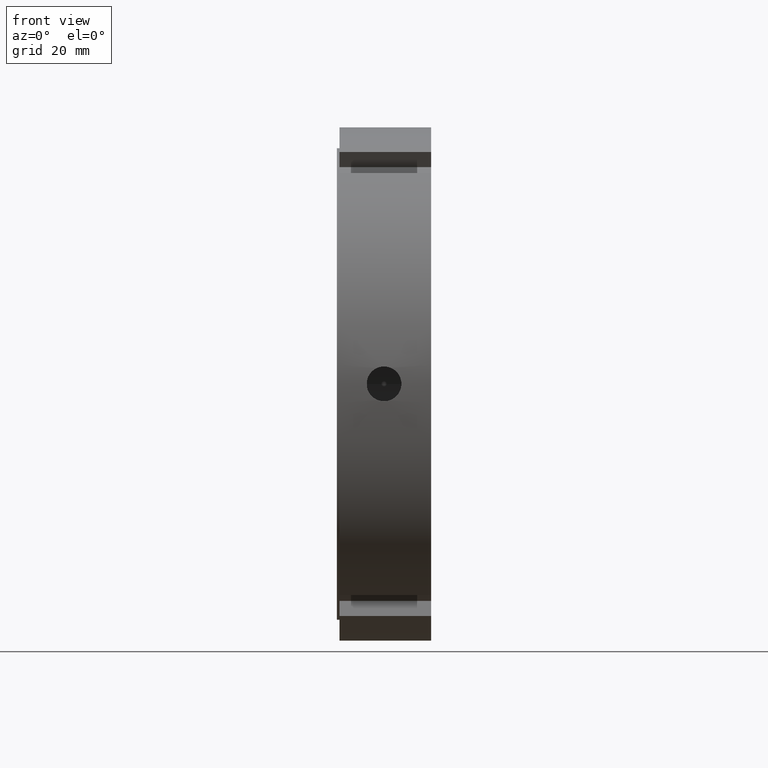
[diagram: clean part render]
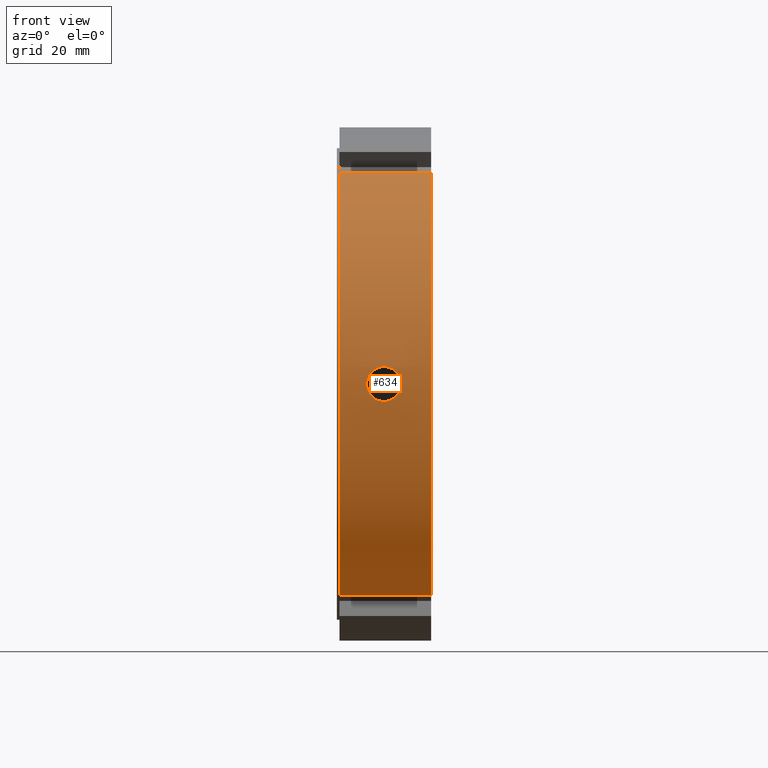
[diagram: same view with one face highlighted and labeled with its STEP entity id]
A machine part, front view. The second image highlights one B-rep face of the part: STEP entity #634.
In plain terms, the highlighted cylindrical surface (partial cylindrical patch) has radius 49 mm, axis along (1, 0, 0).
Its self-contained STEP definition (entity closure, byte-faithful):
#75=CARTESIAN_POINT('',(0.499999999999989,-27.882332509287338,-40.293616539615051));
#76=VERTEX_POINT('',#75);
#91=CARTESIAN_POINT('',(17.999999999999989,-27.882332509287338,-40.293616539615051));
#92=VERTEX_POINT('',#91);
#99=CARTESIAN_POINT('',(0.499999999999989,-27.882332509287338,-40.293616539615051));
#100=DIRECTION('',(1.0,0.0,0.0));
#101=VECTOR('',#100,17.500000000000000);
#102=LINE('',#99,#101);
#103=EDGE_CURVE('',#76,#92,#102,.T.);
#303=CARTESIAN_POINT('',(0.499999999999989,-27.882332509287306,40.293616539615059));
#304=VERTEX_POINT('',#303);
#313=CARTESIAN_POINT('',(17.999999999999989,-27.882332509287306,40.293616539615059));
#314=VERTEX_POINT('',#313);
#315=CARTESIAN_POINT('',(17.999999999999989,-27.882332509287309,40.293616539615059));
#316=DIRECTION('',(-1.0,0.0,0.0));
#317=VECTOR('',#316,17.500000000000000);
#318=LINE('',#315,#317);
#319=EDGE_CURVE('',#314,#304,#318,.T.);
#499=CARTESIAN_POINT('',(17.999999999999989,0.0,0.0));
#500=DIRECTION('',(1.0,0.0,0.0));
#501=DIRECTION('',(0.0,1.0,0.0));
#502=AXIS2_PLACEMENT_3D('',#499,#500,#501);
#503=CIRCLE('',#502,49.0);
#504=EDGE_CURVE('',#314,#92,#503,.T.);
#576=CARTESIAN_POINT('',(9.249999999999989,0.0,0.0));
#577=DIRECTION('',(1.0,0.0,0.0));
#578=DIRECTION('',(0.0,1.0,0.0));
#579=AXIS2_PLACEMENT_3D('',#576,#577,#578);
#580=CYLINDRICAL_SURFACE('',#579,49.0);
#581=ORIENTED_EDGE('',*,*,#103,.T.);
#582=ORIENTED_EDGE('',*,*,#504,.F.);
#583=ORIENTED_EDGE('',*,*,#319,.T.);
#584=CARTESIAN_POINT('',(0.499999999999989,0.0,0.0));
#585=DIRECTION('',(1.0,0.0,0.0));
#586=DIRECTION('',(0.0,1.0,0.0));
#587=AXIS2_PLACEMENT_3D('',#584,#585,#586);
#588=CIRCLE('',#587,49.0);
#589=EDGE_CURVE('',#304,#76,#588,.T.);
#590=ORIENTED_EDGE('',*,*,#589,.T.);
#591=EDGE_LOOP('',(#581,#582,#583,#590));
#592=FACE_OUTER_BOUND('',#591,.T.);
#593=CARTESIAN_POINT('',(8.999999999999989,-48.887159334021447,3.323500000000000));
#594=VERTEX_POINT('',#593);
#595=CARTESIAN_POINT('',(8.999999999999989,-48.887159334021447,3.323500000000000));
#596=CARTESIAN_POINT('',(9.417443722393839,-48.887159334021447,3.323500000000000));
#597=CARTESIAN_POINT('',(9.862624398836054,-48.893056482231749,3.240047528481289));
#598=CARTESIAN_POINT('',(10.681428135779385,-48.914354250794432,2.900832351561690));
#599=CARTESIAN_POINT('',(11.055062087909739,-48.929447158909298,2.645076686637231));
#600=CARTESIAN_POINT('',(11.645076475195580,-48.957777204193334,2.055062299351393));
#601=CARTESIAN_POINT('',(11.900832302418788,-48.972854951259421,1.681428252848316));
#602=CARTESIAN_POINT('',(12.240047608246485,-48.994118040036042,0.862624207850436));
#603=CARTESIAN_POINT('',(12.323499999999989,-49.0,0.417443423197912));
#604=CARTESIAN_POINT('',(12.323499999999989,-49.0,-0.417443423197911));
#605=CARTESIAN_POINT('',(12.240047608246485,-48.994118040036042,-0.862624207850436));
#606=CARTESIAN_POINT('',(11.900832302418788,-48.972854951259421,-1.681428252848316));
#607=CARTESIAN_POINT('',(11.645076475195580,-48.957777204193334,-2.055062299351393));
#608=CARTESIAN_POINT('',(11.055062087909739,-48.929447158909298,-2.645076686637230));
#609=CARTESIAN_POINT('',(10.681428135779385,-48.914354250794432,-2.900832351561689));
#610=CARTESIAN_POINT('',(9.862624398836054,-48.893056482231749,-3.240047528481287));
#611=CARTESIAN_POINT('',(9.417443722393839,-48.887159334021447,-3.323500000000000));
#612=CARTESIAN_POINT('',(8.582556277606139,-48.887159334021447,-3.323500000000000));
#613=CARTESIAN_POINT('',(8.137375601163923,-48.893056482231749,-3.240047528481289));
#614=CARTESIAN_POINT('',(7.318571864220591,-48.914354250794432,-2.900832351561690));
#615=CARTESIAN_POINT('',(6.944937912090239,-48.929447158909298,-2.645076686637231));
#616=CARTESIAN_POINT('',(6.354923524804401,-48.957777204193334,-2.055062299351394));
#617=CARTESIAN_POINT('',(6.099167697581191,-48.972854951259421,-1.681428252848316));
#618=CARTESIAN_POINT('',(5.759952391753494,-48.994118040036042,-0.862624207850436));
#619=CARTESIAN_POINT('',(5.676499999999988,-49.0,-0.417443423197912));
#620=CARTESIAN_POINT('',(5.676499999999988,-49.0,0.417443423197910));
#621=CARTESIAN_POINT('',(5.759952391753494,-48.994118040036042,0.862624207850435));
#622=CARTESIAN_POINT('',(6.099167697581189,-48.972854951259421,1.681428252848316));
#623=CARTESIAN_POINT('',(6.354923524804400,-48.957777204193334,2.055062299351393));
#624=CARTESIAN_POINT('',(6.944937912090237,-48.929447158909298,2.645076686637230));
#625=CARTESIAN_POINT('',(7.318571864220591,-48.914354250794432,2.900832351561689));
#626=CARTESIAN_POINT('',(8.137375601163923,-48.893056482231749,3.240047528481289));
#627=CARTESIAN_POINT('',(8.582556277606138,-48.887159334021447,3.323500000000000));
#628=CARTESIAN_POINT('',(8.999999999999988,-48.887159334021447,3.323500000000000));
#629=B_SPLINE_CURVE_WITH_KNOTS('',3,(#595,#596,#597,#598,#599,#600,#601,#602,#603,#604,#605,#606,#607,#608,#609,#610,#611,#612,#613,#614,#615,#616,#617,#618,#619,#620,#621,#622,#623,#624,#625,#626,#627,#628),.UNSPECIFIED.,.T.,.U.,(4,2,2,2,2,2,2,2,2,2,2,2,2,2,2,2,4),(0.0,0.125233116718155,0.250466233436310,0.375699260395683,0.500932287355057,0.626165314314430,0.751398341273803,0.876631457991959,1.001864574710114,1.127097691428269,1.252330808146424,1.377563835105797,1.502796862065170,1.628029889024544,1.753262915983917,1.878496032702072,2.003729149420227),.UNSPECIFIED.);
#630=EDGE_CURVE('',#594,#594,#629,.T.);
#631=ORIENTED_EDGE('',*,*,#630,.T.);
#632=EDGE_LOOP('',(#631));
#633=FACE_BOUND('',#632,.T.);
#634=ADVANCED_FACE('',(#592,#633),#580,.T.);